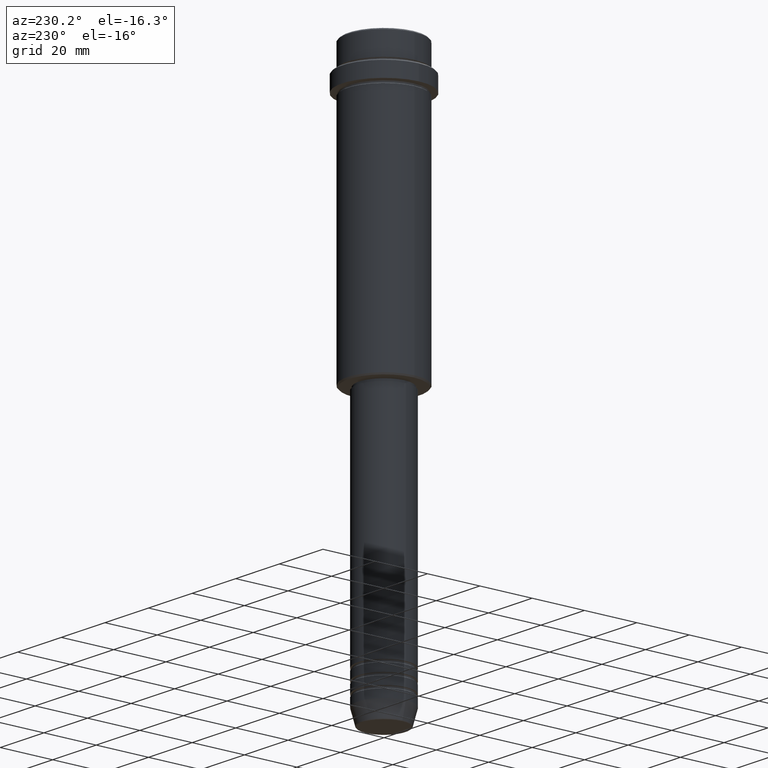
[diagram: clean part render]
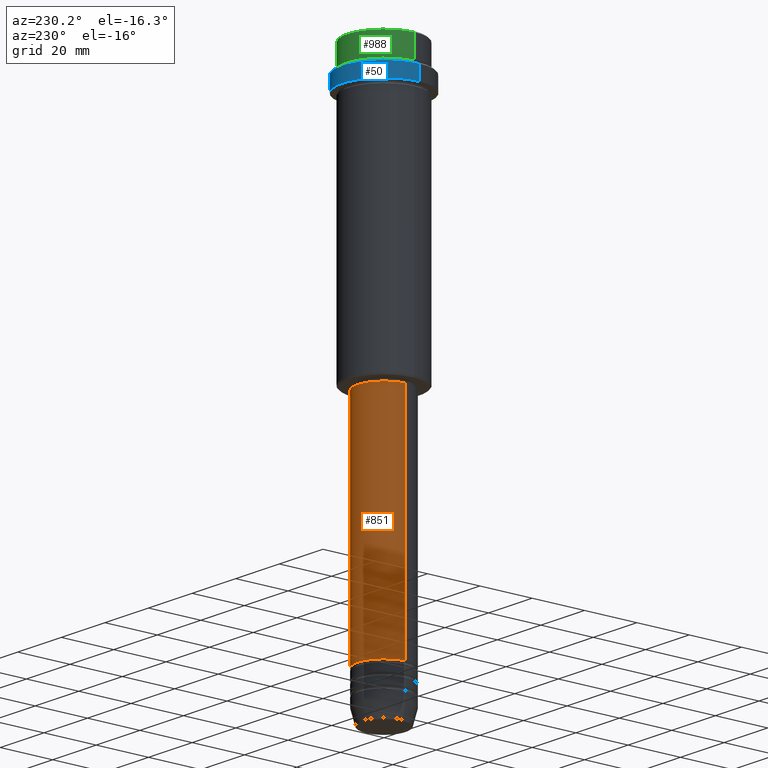
[diagram: same view with three faces highlighted in distinct colors, each labeled with its STEP entity id]
A machine part, auxiliary view with three faces highlighted in distinct colors.
Their STEP definitions:

[orange] entity #851 — the highlighted cylindrical surface (edge-blend (fillet) strip) has radius 10 mm, axis along (-0, -0, 1).
#69 = VERTEX_POINT ( 'NONE', #84 ) ;
#84 = CARTESIAN_POINT ( 'NONE',  ( -10.00000000000000178, 1.224646799147353454E-15, -107.0000000000000000 ) ) ;
#85 = CARTESIAN_POINT ( 'NONE',  ( 10.00000000000000178, 0.000000000000000000, -107.0000000000000000 ) ) ;
#150 = CARTESIAN_POINT ( 'NONE',  ( 0.000000000000000000, 0.000000000000000000, 0.000000000000000000 ) ) ;
#215 = CARTESIAN_POINT ( 'NONE',  ( 10.00000000000000000, 0.000000000000000000, -191.9999999999999147 ) ) ;
#245 = DIRECTION ( 'NONE',  ( -0.000000000000000000, -0.000000000000000000, 1.000000000000000000 ) ) ;
#248 = VERTEX_POINT ( 'NONE', #215 ) ;
#351 = AXIS2_PLACEMENT_3D ( 'NONE', #1213, #565, #452 ) ;
#354 = CYLINDRICAL_SURFACE ( 'NONE', #1099, 10.00000000000000178 ) ;
#365 = CARTESIAN_POINT ( 'NONE',  ( -10.00000000000000000, 1.224646799147353256E-15, -191.9999999999999147 ) ) ;
#369 = DIRECTION ( 'NONE',  ( -0.000000000000000000, -0.000000000000000000, 1.000000000000000000 ) ) ;
#378 = CIRCLE ( 'NONE', #608, 10.00000000000000178 ) ;
#400 = ORIENTED_EDGE ( 'NONE', *, *, #886, .F. ) ;
#451 = FACE_OUTER_BOUND ( 'NONE', #1377, .T. ) ;
#452 = DIRECTION ( 'NONE',  ( 1.000000000000000000, 0.000000000000000000, 0.000000000000000000 ) ) ;
#494 = EDGE_CURVE ( 'NONE', #1103, #69, #1034, .T. ) ;
#565 = DIRECTION ( 'NONE',  ( -0.000000000000000000, -0.000000000000000000, 1.000000000000000000 ) ) ;
#608 = AXIS2_PLACEMENT_3D ( 'NONE', #767, #796, #699 ) ;
#699 = DIRECTION ( 'NONE',  ( 1.000000000000000000, 0.000000000000000000, 0.000000000000000000 ) ) ;
#703 = EDGE_CURVE ( 'NONE', #248, #1103, #963, .T. ) ;
#767 = CARTESIAN_POINT ( 'NONE',  ( 0.000000000000000000, 0.000000000000000000, -107.0000000000000000 ) ) ;
#796 = DIRECTION ( 'NONE',  ( -0.000000000000000000, -0.000000000000000000, 1.000000000000000000 ) ) ;
#851 = ADVANCED_FACE ( 'NONE', ( #451 ), #354, .T. ) ;
#869 = VECTOR ( 'NONE', #369, 1000.000000000000000 ) ;
#878 = EDGE_CURVE ( 'NONE', #248, #1196, #1220, .T. ) ;
#886 = EDGE_CURVE ( 'NONE', #1196, #69, #378, .T. ) ;
#892 = VECTOR ( 'NONE', #1149, 1000.000000000000000 ) ;
#925 = CARTESIAN_POINT ( 'NONE',  ( -10.00000000000000178, 1.224646799147353454E-15, 0.000000000000000000 ) ) ;
#963 = CIRCLE ( 'NONE', #351, 10.00000000000000000 ) ;
#994 = ORIENTED_EDGE ( 'NONE', *, *, #703, .T. ) ;
#1034 = LINE ( 'NONE', #925, #892 ) ;
#1099 = AXIS2_PLACEMENT_3D ( 'NONE', #150, #245, #1211 ) ;
#1103 = VERTEX_POINT ( 'NONE', #365 ) ;
#1149 = DIRECTION ( 'NONE',  ( -0.000000000000000000, -0.000000000000000000, 1.000000000000000000 ) ) ;
#1196 = VERTEX_POINT ( 'NONE', #85 ) ;
#1211 = DIRECTION ( 'NONE',  ( 1.000000000000000000, 0.000000000000000000, 0.000000000000000000 ) ) ;
#1213 = CARTESIAN_POINT ( 'NONE',  ( 0.000000000000000000, 0.000000000000000000, -191.9999999999999147 ) ) ;
#1220 = LINE ( 'NONE', #1316, #869 ) ;
#1296 = ORIENTED_EDGE ( 'NONE', *, *, #494, .T. ) ;
#1316 = CARTESIAN_POINT ( 'NONE',  ( 10.00000000000000178, 0.000000000000000000, 0.000000000000000000 ) ) ;
#1377 = EDGE_LOOP ( 'NONE', ( #994, #1296, #400, #1391 ) ) ;
#1391 = ORIENTED_EDGE ( 'NONE', *, *, #878, .F. ) ;

[blue] entity #50 — the highlighted cylindrical surface (partial cylindrical patch) has radius 16 mm, axis along (-0, -0, 1).
#32 = AXIS2_PLACEMENT_3D ( 'NONE', #190, #396, #926 ) ;
#50 = ADVANCED_FACE ( 'NONE', ( #58 ), #500, .T. ) ;
#58 = FACE_OUTER_BOUND ( 'NONE', #924, .T. ) ;
#64 = CARTESIAN_POINT ( 'NONE',  ( 0.000000000000000000, 0.000000000000000000, -16.00000000000000000 ) ) ;
#138 = CARTESIAN_POINT ( 'NONE',  ( 0.000000000000000000, 0.000000000000000000, -10.50000000000001243 ) ) ;
#160 = VERTEX_POINT ( 'NONE', #411 ) ;
#190 = CARTESIAN_POINT ( 'NONE',  ( 0.000000000000000000, 0.000000000000000000, 0.000000000000000000 ) ) ;
#237 = AXIS2_PLACEMENT_3D ( 'NONE', #138, #557, #684 ) ;
#250 = LINE ( 'NONE', #1197, #559 ) ;
#277 = DIRECTION ( 'NONE',  ( -0.000000000000000000, -0.000000000000000000, 1.000000000000000000 ) ) ;
#313 = CIRCLE ( 'NONE', #698, 15.99999999999997335 ) ;
#339 = LINE ( 'NONE', #1227, #424 ) ;
#359 = EDGE_CURVE ( 'NONE', #428, #432, #843, .T. ) ;
#396 = DIRECTION ( 'NONE',  ( -0.000000000000000000, -0.000000000000000000, 1.000000000000000000 ) ) ;
#411 = CARTESIAN_POINT ( 'NONE',  ( 15.99999999999997335, 0.000000000000000000, -16.00000000000000000 ) ) ;
#424 = VECTOR ( 'NONE', #688, 1000.000000000000000 ) ;
#428 = VERTEX_POINT ( 'NONE', #507 ) ;
#432 = VERTEX_POINT ( 'NONE', #1024 ) ;
#441 = DIRECTION ( 'NONE',  ( -0.000000000000000000, -0.000000000000000000, 1.000000000000000000 ) ) ;
#500 = CYLINDRICAL_SURFACE ( 'NONE', #32, 15.99999999999997335 ) ;
#507 = CARTESIAN_POINT ( 'NONE',  ( -15.99999999999997335, 1.959434878635761976E-15, -10.50000000000001243 ) ) ;
#557 = DIRECTION ( 'NONE',  ( 0.000000000000000000, 0.000000000000000000, -1.000000000000000000 ) ) ;
#559 = VECTOR ( 'NONE', #441, 1000.000000000000000 ) ;
#587 = CARTESIAN_POINT ( 'NONE',  ( -15.99999999999997335, 1.959434878635761976E-15, -16.00000000000000000 ) ) ;
#684 = DIRECTION ( 'NONE',  ( 1.000000000000000000, 0.000000000000000000, 0.000000000000000000 ) ) ;
#688 = DIRECTION ( 'NONE',  ( -0.000000000000000000, -0.000000000000000000, 1.000000000000000000 ) ) ;
#698 = AXIS2_PLACEMENT_3D ( 'NONE', #64, #277, #1008 ) ;
#710 = ORIENTED_EDGE ( 'NONE', *, *, #748, .T. ) ;
#748 = EDGE_CURVE ( 'NONE', #1139, #428, #250, .T. ) ;
#840 = EDGE_CURVE ( 'NONE', #160, #432, #339, .T. ) ;
#843 = CIRCLE ( 'NONE', #237, 15.99999999999997335 ) ;
#924 = EDGE_LOOP ( 'NONE', ( #1154, #710, #1036, #1357 ) ) ;
#926 = DIRECTION ( 'NONE',  ( 1.000000000000000000, 0.000000000000000000, 0.000000000000000000 ) ) ;
#1008 = DIRECTION ( 'NONE',  ( 1.000000000000000000, 0.000000000000000000, 0.000000000000000000 ) ) ;
#1024 = CARTESIAN_POINT ( 'NONE',  ( 15.99999999999997335, 0.000000000000000000, -10.50000000000001243 ) ) ;
#1036 = ORIENTED_EDGE ( 'NONE', *, *, #359, .T. ) ;
#1139 = VERTEX_POINT ( 'NONE', #587 ) ;
#1154 = ORIENTED_EDGE ( 'NONE', *, *, #1358, .T. ) ;
#1197 = CARTESIAN_POINT ( 'NONE',  ( -15.99999999999997335, 1.959434878635761976E-15, 0.000000000000000000 ) ) ;
#1227 = CARTESIAN_POINT ( 'NONE',  ( 15.99999999999997335, 0.000000000000000000, 0.000000000000000000 ) ) ;
#1357 = ORIENTED_EDGE ( 'NONE', *, *, #840, .F. ) ;
#1358 = EDGE_CURVE ( 'NONE', #160, #1139, #313, .T. ) ;

[green] entity #988 — the highlighted cylindrical surface (partial cylindrical patch) has radius 14 mm, axis along (-0, -0, 1).
#92 = CARTESIAN_POINT ( 'NONE',  ( -13.99999999999997158, 1.714505518806291877E-15, -8.999999999999998224 ) ) ;
#103 = LINE ( 'NONE', #968, #962 ) ;
#127 = DIRECTION ( 'NONE',  ( 1.000000000000000000, 0.000000000000000000, 0.000000000000000000 ) ) ;
#201 = CIRCLE ( 'NONE', #1145, 13.99999999999998401 ) ;
#208 = DIRECTION ( 'NONE',  ( 1.000000000000000000, 0.000000000000000000, 0.000000000000000000 ) ) ;
#209 = CARTESIAN_POINT ( 'NONE',  ( 0.000000000000000000, 0.000000000000000000, -8.999999999999998224 ) ) ;
#243 = EDGE_CURVE ( 'NONE', #418, #672, #103, .T. ) ;
#325 = DIRECTION ( 'NONE',  ( 1.000000000000000000, 0.000000000000000000, 0.000000000000000000 ) ) ;
#358 = ORIENTED_EDGE ( 'NONE', *, *, #243, .F. ) ;
#361 = EDGE_LOOP ( 'NONE', ( #524, #1272, #730, #358 ) ) ;
#418 = VERTEX_POINT ( 'NONE', #1238 ) ;
#496 = VECTOR ( 'NONE', #811, 1000.000000000000000 ) ;
#524 = ORIENTED_EDGE ( 'NONE', *, *, #659, .T. ) ;
#528 = VERTEX_POINT ( 'NONE', #616 ) ;
#616 = CARTESIAN_POINT ( 'NONE',  ( -13.99999999999998401, 1.714505518806292666E-15, -0.4999999999999917843 ) ) ;
#642 = DIRECTION ( 'NONE',  ( -0.000000000000000000, -0.000000000000000000, 1.000000000000000000 ) ) ;
#659 = EDGE_CURVE ( 'NONE', #418, #1206, #1047, .T. ) ;
#672 = VERTEX_POINT ( 'NONE', #1077 ) ;
#680 = CARTESIAN_POINT ( 'NONE',  ( 0.000000000000000000, 0.000000000000000000, -0.4999999999999917843 ) ) ;
#730 = ORIENTED_EDGE ( 'NONE', *, *, #1056, .T. ) ;
#750 = CARTESIAN_POINT ( 'NONE',  ( 0.000000000000000000, 0.000000000000000000, 0.000000000000000000 ) ) ;
#811 = DIRECTION ( 'NONE',  ( -0.000000000000000000, -0.000000000000000000, 1.000000000000000000 ) ) ;
#837 = FACE_OUTER_BOUND ( 'NONE', #361, .T. ) ;
#962 = VECTOR ( 'NONE', #1413, 1000.000000000000000 ) ;
#968 = CARTESIAN_POINT ( 'NONE',  ( 13.99999999999998401, 0.000000000000000000, 0.000000000000000000 ) ) ;
#988 = ADVANCED_FACE ( 'NONE', ( #837 ), #1065, .T. ) ;
#1025 = AXIS2_PLACEMENT_3D ( 'NONE', #209, #642, #325 ) ;
#1047 = CIRCLE ( 'NONE', #1025, 13.99999999999997158 ) ;
#1056 = EDGE_CURVE ( 'NONE', #528, #672, #201, .T. ) ;
#1065 = CYLINDRICAL_SURFACE ( 'NONE', #1190, 13.99999999999998401 ) ;
#1077 = CARTESIAN_POINT ( 'NONE',  ( 13.99999999999998401, 0.000000000000000000, -0.4999999999999917843 ) ) ;
#1145 = AXIS2_PLACEMENT_3D ( 'NONE', #680, #1315, #127 ) ;
#1190 = AXIS2_PLACEMENT_3D ( 'NONE', #750, #1282, #208 ) ;
#1206 = VERTEX_POINT ( 'NONE', #92 ) ;
#1238 = CARTESIAN_POINT ( 'NONE',  ( 13.99999999999997158, 0.000000000000000000, -8.999999999999998224 ) ) ;
#1252 = CARTESIAN_POINT ( 'NONE',  ( -13.99999999999998401, 1.714505518806292666E-15, 0.000000000000000000 ) ) ;
#1272 = ORIENTED_EDGE ( 'NONE', *, *, #1352, .T. ) ;
#1282 = DIRECTION ( 'NONE',  ( -0.000000000000000000, -0.000000000000000000, 1.000000000000000000 ) ) ;
#1315 = DIRECTION ( 'NONE',  ( 0.000000000000000000, 0.000000000000000000, -1.000000000000000000 ) ) ;
#1352 = EDGE_CURVE ( 'NONE', #1206, #528, #1372, .T. ) ;
#1372 = LINE ( 'NONE', #1252, #496 ) ;
#1413 = DIRECTION ( 'NONE',  ( -0.000000000000000000, -0.000000000000000000, 1.000000000000000000 ) ) ;